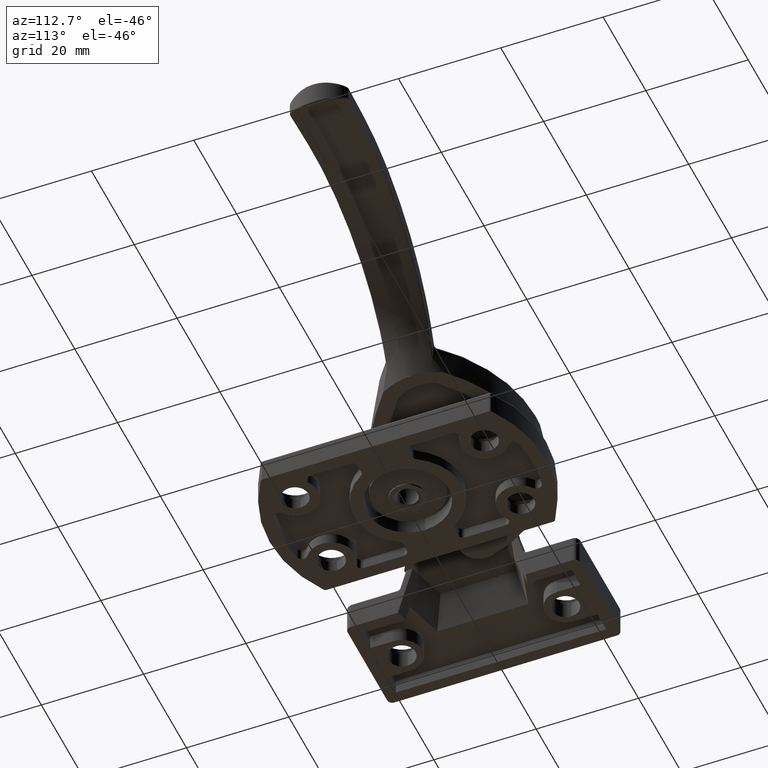
[diagram: clean part render]
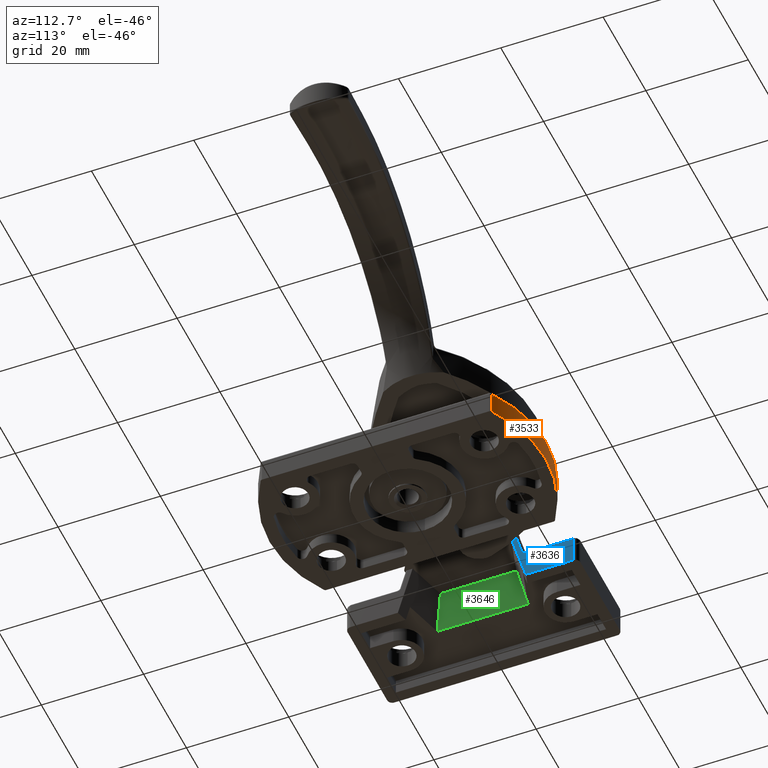
[diagram: same view with three faces highlighted in distinct colors, each labeled with its STEP entity id]
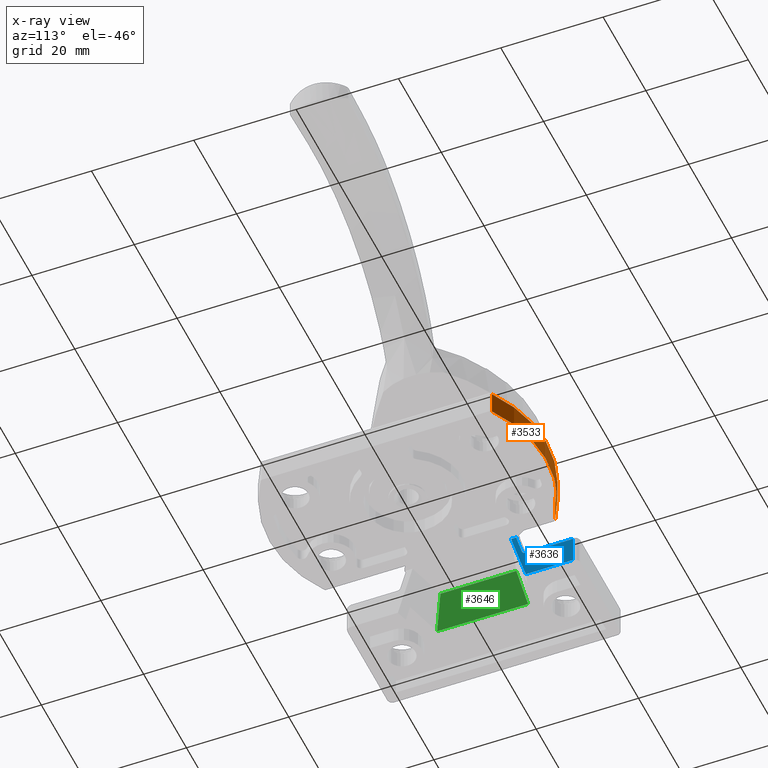
[diagram: x-ray of the same camera — body ghosted, the three highlighted faces saturated]
A machine part, auxiliary view with three faces highlighted in distinct colors.
The next image is the same camera in x-ray (body ghosted, the three faces saturated) — at least one of them is partly hidden behind the body in this view.
Their STEP definitions:

[orange] entity #3533 — the highlighted cylindrical surface (partial cylindrical patch) has radius 27 mm, axis along (0, 0, 1).
#366=LINE('',#5311,#555);
#371=LINE('',#5339,#560);
#555=VECTOR('',#4233,4.5);
#560=VECTOR('',#4264,4.5);
#747=CYLINDRICAL_SURFACE('',#3792,27.);
#848=FACE_OUTER_BOUND('',#1080,.T.);
#1080=EDGE_LOOP('',(#2512,#2513,#2514,#2515));
#1376=CIRCLE('',#3785,27.);
#1380=CIRCLE('',#3793,27.);
#1596=VERTEX_POINT('',#5300);
#1599=VERTEX_POINT('',#5307);
#1608=VERTEX_POINT('',#5332);
#1610=VERTEX_POINT('',#5337);
#1949=EDGE_CURVE('',#1596,#1599,#366,.T.);
#1962=EDGE_CURVE('',#1610,#1608,#371,.T.);
#1964=EDGE_CURVE('',#1608,#1596,#1376,.T.);
#1971=EDGE_CURVE('',#1599,#1610,#1380,.T.);
#2512=ORIENTED_EDGE('',*,*,#1949,.F.);
#2513=ORIENTED_EDGE('',*,*,#1964,.F.);
#2514=ORIENTED_EDGE('',*,*,#1962,.F.);
#2515=ORIENTED_EDGE('',*,*,#1971,.F.);
#3533=ADVANCED_FACE('',(#848),#747,.T.);
#3785=AXIS2_PLACEMENT_3D('',#5342,#4268,#4269);
#3792=AXIS2_PLACEMENT_3D('',#5352,#4285,#4286);
#3793=AXIS2_PLACEMENT_3D('',#5353,#4287,#4288);
#4233=DIRECTION('',(0.,0.,-1.));
#4264=DIRECTION('',(0.,0.,1.));
#4268=DIRECTION('center_axis',(0.,0.,1.));
#4269=DIRECTION('ref_axis',(8.22387425648264E-17,1.,0.));
#4285=DIRECTION('center_axis',(0.,0.,1.));
#4286=DIRECTION('ref_axis',(-0.555555555555556,-0.831479419283098,0.));
#4287=DIRECTION('center_axis',(0.,0.,-1.));
#4288=DIRECTION('ref_axis',(-0.555555555555556,-0.831479419283098,0.));
#5300=CARTESIAN_POINT('',(-14.7735849056604,22.5995838243815,4.5));
#5307=CARTESIAN_POINT('',(-14.7735849056604,22.5995838243815,0.));
#5311=CARTESIAN_POINT('',(-14.7735849056604,22.5995838243815,0.));
#5332=CARTESIAN_POINT('',(14.7735849056604,22.5995838243815,4.5));
#5337=CARTESIAN_POINT('',(14.7735849056604,22.5995838243815,0.));
#5339=CARTESIAN_POINT('',(14.7735849056604,22.5995838243815,0.));
#5342=CARTESIAN_POINT('Origin',(0.,0.,4.5));
#5352=CARTESIAN_POINT('Origin',(0.,0.,0.));
#5353=CARTESIAN_POINT('Origin',(0.,0.,0.));

[blue] entity #3636 — the highlighted planar face has unit normal (1, 0, 0).
#39=ELLIPSE('',#3961,1.04939967096502,1.);
#322=PLANE('',#4005);
#425=LINE('',#5782,#614);
#437=LINE('',#5946,#626);
#456=LINE('',#6035,#645);
#462=LINE('',#6351,#651);
#463=LINE('',#6353,#652);
#464=LINE('',#6354,#653);
#614=VECTOR('',#4628,9.0046058067054);
#626=VECTOR('',#4702,4.20625714591055);
#645=VECTOR('',#4753,5.5);
#651=VECTOR('',#4799,0.981181584569639);
#652=VECTOR('',#4800,10.6924603637652);
#653=VECTOR('',#4801,9.25);
#951=FACE_OUTER_BOUND('',#1223,.T.);
#1223=EDGE_LOOP('',(#2967,#2968,#2969,#2970,#2971,#2972,#2973));
#1707=VERTEX_POINT('',#5779);
#1708=VERTEX_POINT('',#5781);
#1727=VERTEX_POINT('',#5897);
#1733=VERTEX_POINT('',#5944);
#1751=VERTEX_POINT('',#6034);
#1770=VERTEX_POINT('',#6350);
#1771=VERTEX_POINT('',#6352);
#2102=EDGE_CURVE('',#1707,#1708,#425,.T.);
#2130=EDGE_CURVE('',#1727,#1707,#39,.T.);
#2139=EDGE_CURVE('',#1733,#1727,#437,.T.);
#2168=EDGE_CURVE('',#1708,#1751,#456,.T.);
#2202=EDGE_CURVE('',#1770,#1733,#462,.T.);
#2203=EDGE_CURVE('',#1770,#1771,#463,.T.);
#2204=EDGE_CURVE('',#1751,#1771,#464,.T.);
#2967=ORIENTED_EDGE('',*,*,#2139,.F.);
#2968=ORIENTED_EDGE('',*,*,#2202,.F.);
#2969=ORIENTED_EDGE('',*,*,#2203,.T.);
#2970=ORIENTED_EDGE('',*,*,#2204,.F.);
#2971=ORIENTED_EDGE('',*,*,#2168,.F.);
#2972=ORIENTED_EDGE('',*,*,#2102,.F.);
#2973=ORIENTED_EDGE('',*,*,#2130,.F.);
#3636=ADVANCED_FACE('',(#951),#322,.T.);
#3961=AXIS2_PLACEMENT_3D('',#5899,#4682,#4683);
#4005=AXIS2_PLACEMENT_3D('',#6349,#4797,#4798);
#4628=DIRECTION('',(0.,1.,0.));
#4682=DIRECTION('center_axis',(1.,0.,0.));
#4683=DIRECTION('ref_axis',(0.,-1.,-1.45469519487821E-15));
#4702=DIRECTION('',(0.,0.266193897292084,-0.963919503404953));
#4753=DIRECTION('',(0.,0.,-1.));
#4797=DIRECTION('center_axis',(1.,0.,0.));
#4798=DIRECTION('ref_axis',(0.,0.,-1.));
#4799=DIRECTION('',(0.,1.,0.));
#4800=DIRECTION('',(0.,0.268442900652382,-0.963295597980877));
#4801=DIRECTION('',(0.,-1.,0.));
#5779=CARTESIAN_POINT('',(10.25,12.7453941932946,5.5));
#5781=CARTESIAN_POINT('',(10.25,21.75,5.5));
#5782=CARTESIAN_POINT('',(10.25,11.375,5.5));
#5897=CARTESIAN_POINT('',(10.25,11.7305464920925,6.24550670072036));
#5899=CARTESIAN_POINT('Origin',(10.25,12.7453941932946,6.5));
#5944=CARTESIAN_POINT('',(10.25,10.6108665094099,10.3));
#5946=CARTESIAN_POINT('',(10.25,11.6777810942242,6.43657643082156));
#6034=CARTESIAN_POINT('',(10.25,21.75,0.));
#6035=CARTESIAN_POINT('',(10.25,21.75,0.));
#6349=CARTESIAN_POINT('Origin',(10.25,22.75,0.));
#6350=CARTESIAN_POINT('',(10.25,9.62968492484026,10.3));
#6351=CARTESIAN_POINT('',(10.25,-5.04067296539071,10.3));
#6352=CARTESIAN_POINT('',(10.25,12.5,0.));
#6353=CARTESIAN_POINT('',(10.25,12.7612232670512,-0.937388258840257));
#6354=CARTESIAN_POINT('',(10.25,22.75,0.));

[green] entity #3646 — the highlighted planar face has unit normal (-0.9659, -0, 0.2588).
#326=PLANE('',#4024);
#466=LINE('',#6359,#655);
#481=LINE('',#6412,#670);
#484=LINE('',#6418,#673);
#485=LINE('',#6419,#674);
#655=VECTOR('',#4805,14.836442239418);
#670=VECTOR('',#4854,7.70019219394793);
#673=VECTOR('',#4859,17.7873132736169);
#674=VECTOR('',#4860,7.70019219394793);
#961=FACE_OUTER_BOUND('',#1241,.T.);
#1241=EDGE_LOOP('',(#3030,#3031,#3032,#3033));
#1772=VERTEX_POINT('',#6356);
#1773=VERTEX_POINT('',#6358);
#1794=VERTEX_POINT('',#6411);
#1796=VERTEX_POINT('',#6417);
#2206=EDGE_CURVE('',#1772,#1773,#466,.T.);
#2230=EDGE_CURVE('',#1794,#1773,#481,.T.);
#2233=EDGE_CURVE('',#1794,#1796,#484,.T.);
#2234=EDGE_CURVE('',#1796,#1772,#485,.T.);
#3030=ORIENTED_EDGE('',*,*,#2233,.F.);
#3031=ORIENTED_EDGE('',*,*,#2230,.T.);
#3032=ORIENTED_EDGE('',*,*,#2206,.F.);
#3033=ORIENTED_EDGE('',*,*,#2234,.F.);
#3646=ADVANCED_FACE('',(#961),#326,.F.);
#4024=AXIS2_PLACEMENT_3D('',#6416,#4857,#4858);
#4805=DIRECTION('',(0.,1.,0.));
#4854=DIRECTION('',(0.254023413374612,-0.191610219581155,0.948028285026123));
#4857=DIRECTION('center_axis',(-0.965925826289068,0.,0.258819045102521));
#4858=DIRECTION('ref_axis',(0.,-1.,0.));
#4859=DIRECTION('',(0.,-1.,0.));
#4860=DIRECTION('',(0.254023413374612,0.191610219581155,0.948028285026123));
#6356=CARTESIAN_POINT('',(2.50987668204056,-7.41822111970899,10.3));
#6358=CARTESIAN_POINT('',(2.50987668204056,7.41822111970898,10.3));
#6359=CARTESIAN_POINT('',(2.50987668204056,-9.5,10.3));
#6411=CARTESIAN_POINT('',(0.553847577293365,8.89365663680844,3.));
#6412=CARTESIAN_POINT('',(0.212398079146903,9.15121247564458,1.72569312469851));
#6416=CARTESIAN_POINT('Origin',(-0.250000000000003,-9.5,0.));
#6417=CARTESIAN_POINT('',(0.553847577293364,-8.89365663680845,3.));
#6418=CARTESIAN_POINT('',(0.553847577293366,-4.75,3.));
#6419=CARTESIAN_POINT('',(0.0157612233248679,-9.29953593379073,0.991834388130081));